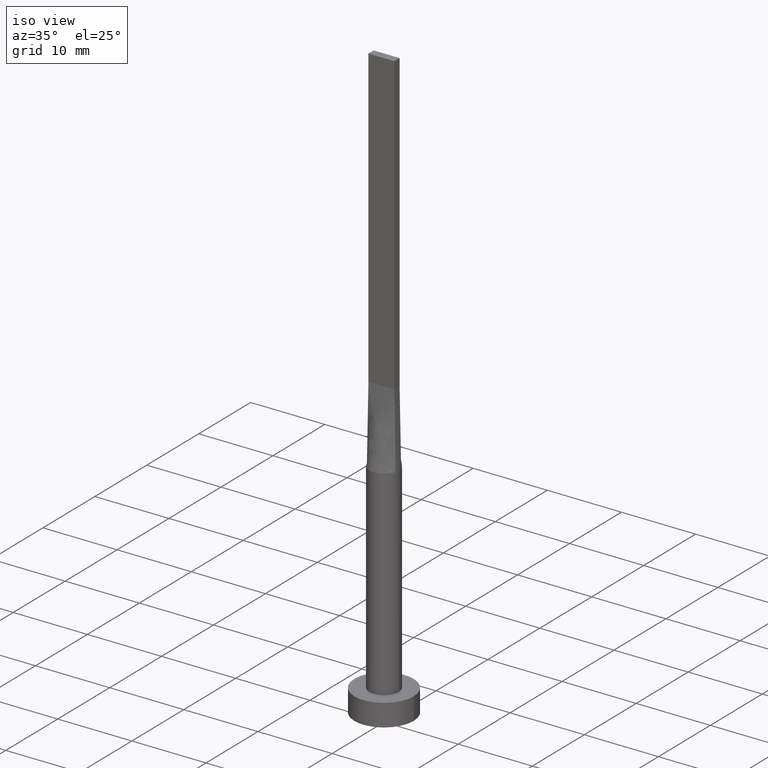
[diagram: clean part render]
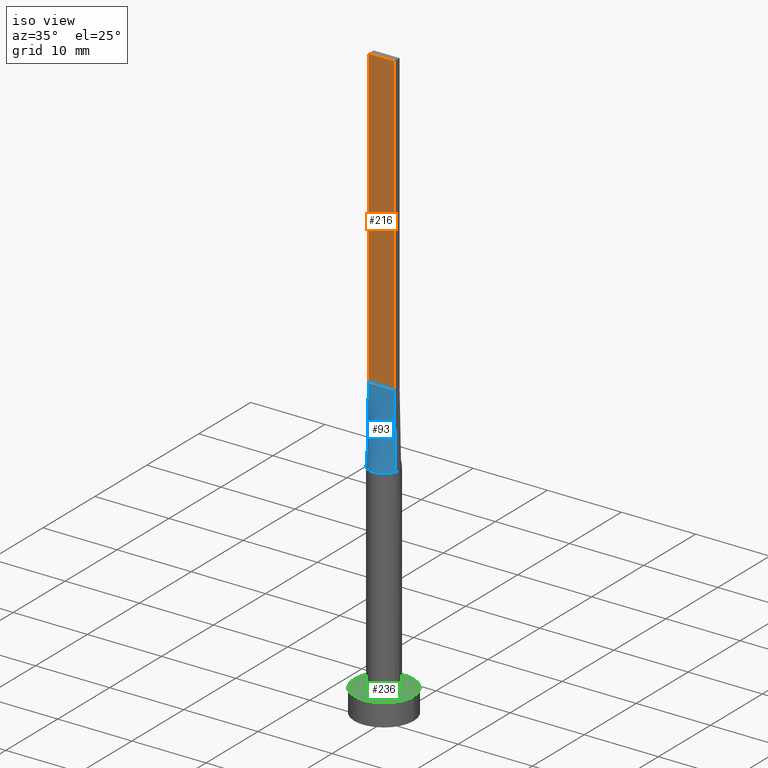
[diagram: same view with three faces highlighted in distinct colors, each labeled with its STEP entity id]
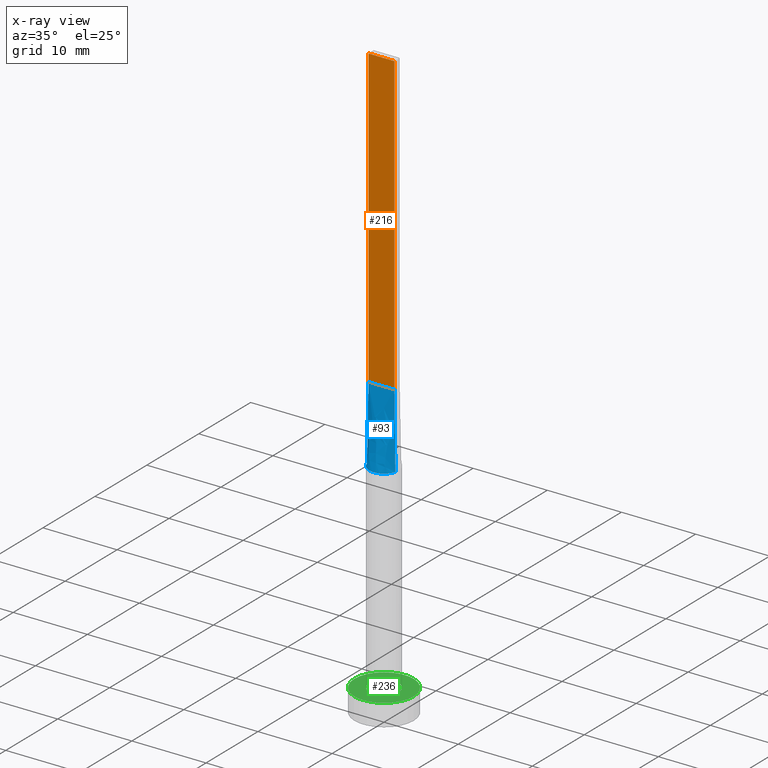
[diagram: x-ray of the same camera — body ghosted, the three highlighted faces saturated]
A machine part, iso view with three faces highlighted in distinct colors.
The next image is the same camera in x-ray (body ghosted, the three faces saturated) — at least one of them is partly hidden behind the body in this view.
Their STEP definitions:

[orange] entity #216 — the highlighted planar face has unit normal (0, 1, -0).
#12 = VECTOR ( 'NONE', #211, 1000.000000000000000 ) ;
#15 = DIRECTION ( 'NONE',  ( -1.000000000000000000, 6.195440985631454085E-17, 0.000000000000000000 ) ) ;
#17 = CARTESIAN_POINT ( 'NONE',  ( 1.750000000000000000, -0.4999999999999997780, 80.00000000000000000 ) ) ;
#39 = ORIENTED_EDGE ( 'NONE', *, *, #564, .T. ) ;
#43 = VERTEX_POINT ( 'NONE', #145 ) ;
#64 = CARTESIAN_POINT ( 'NONE',  ( -1.750000000000000000, -0.4999999999999995559, 40.00000000000000000 ) ) ;
#86 = VERTEX_POINT ( 'NONE', #17 ) ;
#88 = DIRECTION ( 'NONE',  ( -0.000000000000000000, -0.000000000000000000, -1.000000000000000000 ) ) ;
#101 = FACE_OUTER_BOUND ( 'NONE', #189, .T. ) ;
#102 = DIRECTION ( 'NONE',  ( -0.000000000000000000, -0.000000000000000000, -1.000000000000000000 ) ) ;
#120 = LINE ( 'NONE', #526, #12 ) ;
#143 = CARTESIAN_POINT ( 'NONE',  ( -1.750000000000000000, -0.4999999999999995559, 40.00000000000000000 ) ) ;
#145 = CARTESIAN_POINT ( 'NONE',  ( -1.750000000000000000, -0.4999999999999995559, 80.00000000000000000 ) ) ;
#178 = VECTOR ( 'NONE', #88, 1000.000000000000000 ) ;
#188 = CARTESIAN_POINT ( 'NONE',  ( 1.750000000000000000, -0.4999999999999997780, 40.00000000000000000 ) ) ;
#189 = EDGE_LOOP ( 'NONE', ( #39, #449, #386, #217 ) ) ;
#211 = DIRECTION ( 'NONE',  ( 1.000000000000000000, -6.195440985631454085E-17, 0.000000000000000000 ) ) ;
#216 = ADVANCED_FACE ( 'NONE', ( #101 ), #408, .F. ) ;
#217 = ORIENTED_EDGE ( 'NONE', *, *, #549, .T. ) ;
#234 = DIRECTION ( 'NONE',  ( 6.195440985631454085E-17, 1.000000000000000000, -0.000000000000000000 ) ) ;
#238 = VERTEX_POINT ( 'NONE', #188 ) ;
#271 = AXIS2_PLACEMENT_3D ( 'NONE', #505, #234, #15 ) ;
#284 = VECTOR ( 'NONE', #102, 1000.000000000000000 ) ;
#301 = VERTEX_POINT ( 'NONE', #64 ) ;
#313 = LINE ( 'NONE', #553, #284 ) ;
#340 = LINE ( 'NONE', #498, #178 ) ;
#386 = ORIENTED_EDGE ( 'NONE', *, *, #429, .F. ) ;
#404 = VECTOR ( 'NONE', #540, 1000.000000000000000 ) ;
#407 = LINE ( 'NONE', #143, #404 ) ;
#408 = PLANE ( 'NONE',  #271 ) ;
#429 = EDGE_CURVE ( 'NONE', #43, #86, #120, .T. ) ;
#439 = EDGE_CURVE ( 'NONE', #86, #238, #340, .T. ) ;
#449 = ORIENTED_EDGE ( 'NONE', *, *, #439, .F. ) ;
#498 = CARTESIAN_POINT ( 'NONE',  ( 1.750000000000000000, -0.4999999999999997780, 80.00000000000000000 ) ) ;
#505 = CARTESIAN_POINT ( 'NONE',  ( -1.750000000000000000, -0.4999999999999995559, 80.00000000000000000 ) ) ;
#526 = CARTESIAN_POINT ( 'NONE',  ( -1.750000000000000000, -0.4999999999999995559, 80.00000000000000000 ) ) ;
#540 = DIRECTION ( 'NONE',  ( 1.000000000000000000, -6.195440985631454085E-17, 0.000000000000000000 ) ) ;
#549 = EDGE_CURVE ( 'NONE', #43, #301, #313, .T. ) ;
#553 = CARTESIAN_POINT ( 'NONE',  ( -1.750000000000000000, -0.4999999999999995559, 80.00000000000000000 ) ) ;
#564 = EDGE_CURVE ( 'NONE', #301, #238, #407, .T. ) ;

[blue] entity #93 — the highlighted face is a freeform B-spline surface patch.
#1 = AXIS2_PLACEMENT_3D ( 'NONE', #354, #523, #533 ) ;
#11 = CARTESIAN_POINT ( 'NONE',  ( 0.5022746254375793917, -1.951069421695588169, 29.99999999999999645 ) ) ;
#20 = DIRECTION ( 'NONE',  ( -0.01730198768854150290, 0.004943425053868997360, 0.9998380887777591486 ) ) ;
#41 = CARTESIAN_POINT ( 'NONE',  ( 1.616149014776643522, -1.193458220519943547, 30.00000000000000711 ) ) ;
#52 = CARTESIAN_POINT ( 'NONE',  ( -0.9545234919502417759, -1.774214358793529067, 30.00000000000000355 ) ) ;
#60 = EDGE_CURVE ( 'NONE', #301, #353, #325, .T. ) ;
#64 = CARTESIAN_POINT ( 'NONE',  ( -1.750000000000000000, -0.4999999999999995559, 40.00000000000000000 ) ) ;
#91 = CARTESIAN_POINT ( 'NONE',  ( -0.2916666666666685725, -0.4999999999999995559, 39.99999999999999289 ) ) ;
#93 = ADVANCED_FACE ( 'NONE', ( #425 ), #536, .T. ) ;
#117 = CARTESIAN_POINT ( 'NONE',  ( 1.923186205402444449, -0.5494823831763672173, 30.00000000000000000 ) ) ;
#127 = CARTESIAN_POINT ( 'NONE',  ( -1.486037034853320060, -1.356520562679217390, 29.99999999999999645 ) ) ;
#135 = CARTESIAN_POINT ( 'NONE',  ( 1.486037034853319616, -1.356520562679219166, 30.00000000000001066 ) ) ;
#143 = CARTESIAN_POINT ( 'NONE',  ( -1.750000000000000000, -0.4999999999999995559, 40.00000000000000000 ) ) ;
#173 = ORIENTED_EDGE ( 'NONE', *, *, #175, .T. ) ;
#175 = EDGE_CURVE ( 'NONE', #484, #238, #459, .T. ) ;
#176 = CARTESIAN_POINT ( 'NONE',  ( 1.879022738048941710, -0.7035303061092221810, 30.00000000000000000 ) ) ;
#177 = CARTESIAN_POINT ( 'NONE',  ( 1.155438169178558017, -1.647245198242354158, 30.00000000000001066 ) ) ;
#183 = ORIENTED_EDGE ( 'NONE', *, *, #564, .F. ) ;
#188 = CARTESIAN_POINT ( 'NONE',  ( 1.750000000000000000, -0.4999999999999997780, 40.00000000000000000 ) ) ;
#199 = CARTESIAN_POINT ( 'NONE',  ( -0.1458333333333353687, -0.4999999999999995559, 40.00000000000000000 ) ) ;
#204 = CARTESIAN_POINT ( 'NONE',  ( -1.923161340940673369, -0.5494751859438878894, 30.00000000000000000 ) ) ;
#209 = CARTESIAN_POINT ( 'NONE',  ( 1.812374357931689106, -0.8669367617086289890, 30.00000000000001066 ) ) ;
#219 = CARTESIAN_POINT ( 'NONE',  ( 1.458333333333332815, -0.4999999999999996669, 39.99999999999999289 ) ) ;
#231 = CIRCLE ( 'NONE', #1, 2.000000000000000000 ) ;
#235 = CARTESIAN_POINT ( 'NONE',  ( -1.166666666666667851, -0.4999999999999995559, 39.99999999999999289 ) ) ;
#238 = VERTEX_POINT ( 'NONE', #188 ) ;
#240 = DIRECTION ( 'NONE',  ( -0.01730198768854152372, -0.004943425053868953992, -0.9998380887777591486 ) ) ;
#243 = CARTESIAN_POINT ( 'NONE',  ( -1.879022738048942598, -0.7035303061092208488, 30.00000000000000355 ) ) ;
#262 = CARTESIAN_POINT ( 'NONE',  ( 0.1458333333333314275, -0.4999999999999995559, 39.99999999999999289 ) ) ;
#282 = CARTESIAN_POINT ( 'NONE',  ( -1.616149014776643744, -1.193458220519941326, 29.99999999999999645 ) ) ;
#285 = CARTESIAN_POINT ( 'NONE',  ( -1.836523947640823273, -0.5247211278973773485, 35.00000000000000000 ) ) ;
#301 = VERTEX_POINT ( 'NONE', #64 ) ;
#303 = CARTESIAN_POINT ( 'NONE',  ( 0.7291666666666650753, -0.4999999999999995559, 39.99999999999999289 ) ) ;
#307 = CARTESIAN_POINT ( 'NONE',  ( 0.2514338042514523419, -2.000000000000000444, 30.00000000000000000 ) ) ;
#325 = LINE ( 'NONE', #285, #452 ) ;
#353 = VERTEX_POINT ( 'NONE', #204 ) ;
#354 = CARTESIAN_POINT ( 'NONE',  ( 0.000000000000000000, 0.000000000000000000, 30.00000000000000000 ) ) ;
#357 = CARTESIAN_POINT ( 'NONE',  ( 1.604166666666666519, -0.4999999999999997780, 39.99999999999999289 ) ) ;
#359 = CARTESIAN_POINT ( 'NONE',  ( 1.923047895281646325, -0.5494422557947558072, 30.00000000000000000 ) ) ;
#381 = CARTESIAN_POINT ( 'NONE',  ( -0.7291666666666681840, -0.4999999999999995559, 39.99999999999999289 ) ) ;
#391 = CARTESIAN_POINT ( 'NONE',  ( -1.155438169178558461, -1.647245198242353714, 30.00000000000000355 ) ) ;
#401 = CARTESIAN_POINT ( 'NONE',  ( 0.5833333333333317050, -0.4999999999999995559, 39.99999999999999289 ) ) ;
#404 = VECTOR ( 'NONE', #540, 1000.000000000000000 ) ;
#407 = LINE ( 'NONE', #143, #404 ) ;
#425 = FACE_OUTER_BOUND ( 'NONE', #522, .T. ) ;
#428 = CARTESIAN_POINT ( 'NONE',  ( -0.5022746254375808350, -1.951069421695587724, 29.99999999999999289 ) ) ;
#436 = ORIENTED_EDGE ( 'NONE', *, *, #60, .T. ) ;
#443 = CARTESIAN_POINT ( 'NONE',  ( 0.9545234919502404436, -1.774214358793530177, 30.00000000000001066 ) ) ;
#446 = CARTESIAN_POINT ( 'NONE',  ( 1.020833333333331927, -0.4999999999999995559, 39.99999999999999289 ) ) ;
#451 = CARTESIAN_POINT ( 'NONE',  ( 1.166666666666665408, -0.4999999999999995559, 39.99999999999999289 ) ) ;
#452 = VECTOR ( 'NONE', #240, 1000.000000000000227 ) ;
#454 = EDGE_CURVE ( 'NONE', #353, #484, #231, .T. ) ;
#459 = LINE ( 'NONE', #546, #572 ) ;
#468 = CARTESIAN_POINT ( 'NONE',  ( -1.812374357931689994, -0.8669367617086277678, 30.00000000000000355 ) ) ;
#484 = VERTEX_POINT ( 'NONE', #117 ) ;
#489 = CARTESIAN_POINT ( 'NONE',  ( -1.020833333333334592, -0.4999999999999995559, 39.99999999999999289 ) ) ;
#493 = CARTESIAN_POINT ( 'NONE',  ( -0.5833333333333350357, -0.4999999999999995559, 39.99999999999999289 ) ) ;
#504 = CARTESIAN_POINT ( 'NONE',  ( -1.458333333333333925, -0.4999999999999995559, 39.99999999999999289 ) ) ;
#507 = CARTESIAN_POINT ( 'NONE',  ( -1.750000000000000000, -0.4999999999999995559, 40.00000000000000000 ) ) ;
#522 = EDGE_LOOP ( 'NONE', ( #576, #173, #183, #436 ) ) ;
#523 = DIRECTION ( 'NONE',  ( 0.000000000000000000, 0.000000000000000000, 1.000000000000000000 ) ) ;
#533 = DIRECTION ( 'NONE',  ( 1.000000000000000000, 0.000000000000000000, 0.000000000000000000 ) ) ;
#535 = CARTESIAN_POINT ( 'NONE',  ( -0.2514338042514540073, -1.999999999999999112, 29.99999999999999645 ) ) ;
#536 = B_SPLINE_SURFACE_WITH_KNOTS ( 'NONE', 3, 1, ( 
 ( #563, #507 ),
 ( #243, #566 ),
 ( #468, #504 ),
 ( #282, #235 ),
 ( #127, #489 ),
 ( #391, #381 ),
 ( #52, #493 ),
 ( #428, #91 ),
 ( #535, #199 ),
 ( #307, #262 ),
 ( #11, #569 ),
 ( #443, #401 ),
 ( #177, #303 ),
 ( #135, #446 ),
 ( #41, #451 ),
 ( #209, #219 ),
 ( #176, #357 ),
 ( #359, #542 ) ),
 .UNSPECIFIED., .F., .F., .F.,
 ( 4, 2, 2, 2, 2, 2, 2, 2, 4 ),
 ( 2, 2 ),
 ( 0.000000000000000000, 0.1249999999999999722, 0.2500000000000000000, 0.3750000000000000000, 0.5000000000000001110, 0.6250000000000001110, 0.7500000000000000000, 0.8750000000000000000, 1.000000000000000000 ),
 ( 0.000000000000000000, 1.000000000000000000 ),
 .UNSPECIFIED. ) ;
#540 = DIRECTION ( 'NONE',  ( 1.000000000000000000, -6.195440985631454085E-17, 0.000000000000000000 ) ) ;
#542 = CARTESIAN_POINT ( 'NONE',  ( 1.750000000000000000, -0.4999999999999997780, 40.00000000000000000 ) ) ;
#546 = CARTESIAN_POINT ( 'NONE',  ( 1.836523947640823051, -0.5247211278973777926, 35.00000000000000000 ) ) ;
#563 = CARTESIAN_POINT ( 'NONE',  ( -1.923047895281646547, -0.5494422557947552521, 30.00000000000000000 ) ) ;
#564 = EDGE_CURVE ( 'NONE', #301, #238, #407, .T. ) ;
#566 = CARTESIAN_POINT ( 'NONE',  ( -1.604166666666666963, -0.4999999999999995559, 39.99999999999999289 ) ) ;
#569 = CARTESIAN_POINT ( 'NONE',  ( 0.2916666666666649643, -0.4999999999999995559, 39.99999999999999289 ) ) ;
#572 = VECTOR ( 'NONE', #20, 1000.000000000000227 ) ;
#576 = ORIENTED_EDGE ( 'NONE', *, *, #454, .T. ) ;

[green] entity #236 — the highlighted planar face has unit normal (0, 0, 1).
#27 = DIRECTION ( 'NONE',  ( 0.000000000000000000, 0.000000000000000000, 1.000000000000000000 ) ) ;
#34 = VERTEX_POINT ( 'NONE', #92 ) ;
#44 = ORIENTED_EDGE ( 'NONE', *, *, #543, .T. ) ;
#74 = ORIENTED_EDGE ( 'NONE', *, *, #281, .T. ) ;
#81 = CIRCLE ( 'NONE', #571, 4.000000000000000000 ) ;
#90 = CARTESIAN_POINT ( 'NONE',  ( -2.000000000000000000, 0.000000000000000000, 3.000000000000000000 ) ) ;
#92 = CARTESIAN_POINT ( 'NONE',  ( 2.000000000000000000, 2.449293598294706414E-16, 3.000000000000000000 ) ) ;
#94 = CARTESIAN_POINT ( 'NONE',  ( 0.000000000000000000, 0.000000000000000000, 3.000000000000000000 ) ) ;
#105 = FACE_BOUND ( 'NONE', #557, .T. ) ;
#107 = CARTESIAN_POINT ( 'NONE',  ( 0.000000000000000000, 0.000000000000000000, 3.000000000000000000 ) ) ;
#123 = CIRCLE ( 'NONE', #510, 2.000000000000000000 ) ;
#144 = DIRECTION ( 'NONE',  ( 1.000000000000000000, 0.000000000000000000, 0.000000000000000000 ) ) ;
#186 = FACE_OUTER_BOUND ( 'NONE', #444, .T. ) ;
#195 = AXIS2_PLACEMENT_3D ( 'NONE', #107, #27, #286 ) ;
#229 = DIRECTION ( 'NONE',  ( 0.000000000000000000, 0.000000000000000000, 1.000000000000000000 ) ) ;
#230 = DIRECTION ( 'NONE',  ( 1.000000000000000000, 0.000000000000000000, 0.000000000000000000 ) ) ;
#236 = ADVANCED_FACE ( 'NONE', ( #105, #186 ), #362, .T. ) ;
#260 = ORIENTED_EDGE ( 'NONE', *, *, #274, .F. ) ;
#274 = EDGE_CURVE ( 'NONE', #383, #34, #123, .T. ) ;
#281 = EDGE_CURVE ( 'NONE', #530, #471, #316, .T. ) ;
#286 = DIRECTION ( 'NONE',  ( 1.000000000000000000, 0.000000000000000000, 0.000000000000000000 ) ) ;
#316 = CIRCLE ( 'NONE', #552, 4.000000000000000000 ) ;
#339 = ORIENTED_EDGE ( 'NONE', *, *, #363, .F. ) ;
#351 = AXIS2_PLACEMENT_3D ( 'NONE', #94, #412, #548 ) ;
#362 = PLANE ( 'NONE',  #351 ) ;
#363 = EDGE_CURVE ( 'NONE', #34, #383, #461, .T. ) ;
#369 = DIRECTION ( 'NONE',  ( 0.000000000000000000, 0.000000000000000000, 1.000000000000000000 ) ) ;
#383 = VERTEX_POINT ( 'NONE', #90 ) ;
#411 = CARTESIAN_POINT ( 'NONE',  ( 0.000000000000000000, 0.000000000000000000, 3.000000000000000000 ) ) ;
#412 = DIRECTION ( 'NONE',  ( 0.000000000000000000, 0.000000000000000000, 1.000000000000000000 ) ) ;
#419 = CARTESIAN_POINT ( 'NONE',  ( 0.000000000000000000, 0.000000000000000000, 3.000000000000000000 ) ) ;
#444 = EDGE_LOOP ( 'NONE', ( #44, #74 ) ) ;
#445 = CARTESIAN_POINT ( 'NONE',  ( -4.000000000000000000, 0.000000000000000000, 3.000000000000000000 ) ) ;
#456 = DIRECTION ( 'NONE',  ( 0.000000000000000000, 0.000000000000000000, 1.000000000000000000 ) ) ;
#461 = CIRCLE ( 'NONE', #195, 2.000000000000000000 ) ;
#471 = VERTEX_POINT ( 'NONE', #445 ) ;
#510 = AXIS2_PLACEMENT_3D ( 'NONE', #419, #456, #230 ) ;
#530 = VERTEX_POINT ( 'NONE', #547 ) ;
#543 = EDGE_CURVE ( 'NONE', #471, #530, #81, .T. ) ;
#545 = DIRECTION ( 'NONE',  ( 1.000000000000000000, 0.000000000000000000, 0.000000000000000000 ) ) ;
#547 = CARTESIAN_POINT ( 'NONE',  ( 4.000000000000000000, 4.898587196589412829E-16, 3.000000000000000000 ) ) ;
#548 = DIRECTION ( 'NONE',  ( 1.000000000000000000, 0.000000000000000000, -0.000000000000000000 ) ) ;
#552 = AXIS2_PLACEMENT_3D ( 'NONE', #554, #369, #144 ) ;
#554 = CARTESIAN_POINT ( 'NONE',  ( 0.000000000000000000, 0.000000000000000000, 3.000000000000000000 ) ) ;
#557 = EDGE_LOOP ( 'NONE', ( #260, #339 ) ) ;
#571 = AXIS2_PLACEMENT_3D ( 'NONE', #411, #229, #545 ) ;